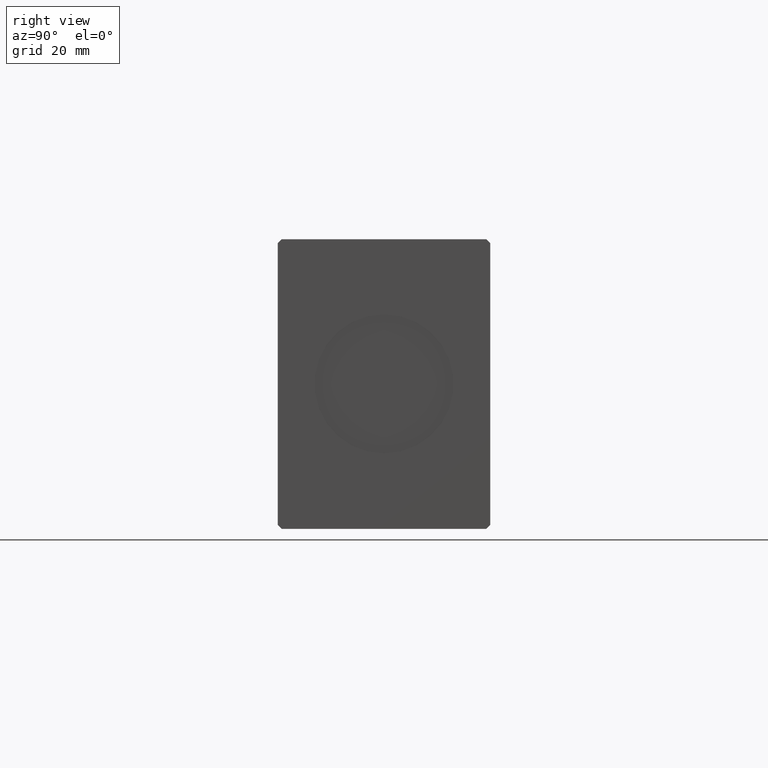
[diagram: clean part render]
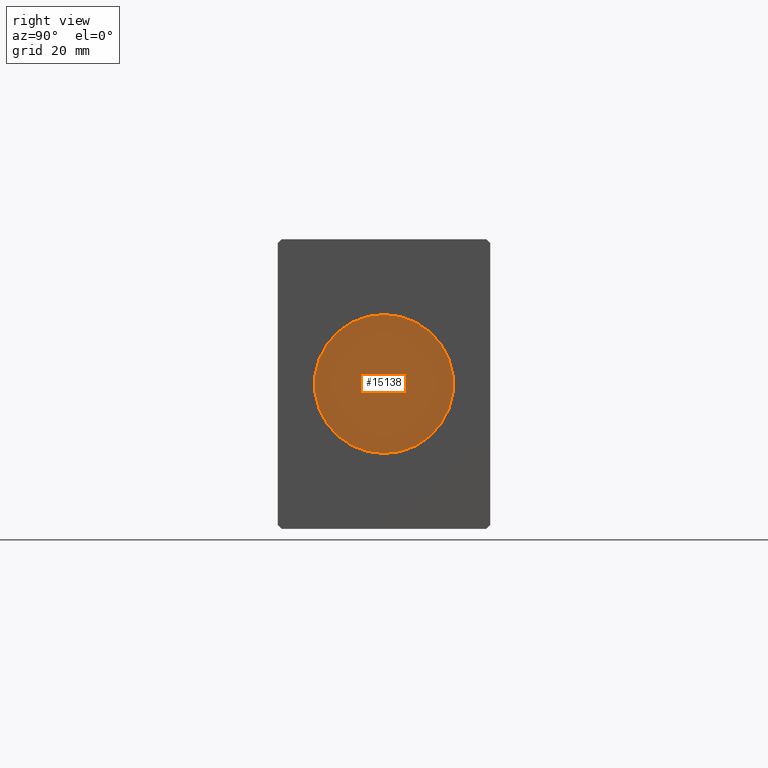
[diagram: same view with one face highlighted and labeled with its STEP entity id]
A machine part, right view. The second image highlights one B-rep face of the part: STEP entity #15138.
In plain terms, the highlighted planar face has unit normal (1, 0, 0).
Its self-contained STEP definition (entity closure, byte-faithful):
#555 = CARTESIAN_POINT ( 'NONE',  ( 164.8000000000000114, 2.204364238465235428E-15, 18.00000000000000000 ) ) ;
#2468 = EDGE_LOOP ( 'NONE', ( #24217, #15541 ) ) ;
#3814 = EDGE_CURVE ( 'NONE', #20819, #7463, #13003, .T. ) ;
#4744 = CARTESIAN_POINT ( 'NONE',  ( 164.8000000000000114, 0.000000000000000000, 0.000000000000000000 ) ) ;
#6166 = DIRECTION ( 'NONE',  ( 1.000000000000000000, 0.000000000000000000, 0.000000000000000000 ) ) ;
#6653 = CARTESIAN_POINT ( 'NONE',  ( 164.8000000000000114, 0.000000000000000000, -18.00000000000000000 ) ) ;
#7463 = VERTEX_POINT ( 'NONE', #555 ) ;
#8558 = DIRECTION ( 'NONE',  ( 0.000000000000000000, 0.000000000000000000, -1.000000000000000000 ) ) ;
#8799 = DIRECTION ( 'NONE',  ( 0.000000000000000000, 0.000000000000000000, -1.000000000000000000 ) ) ;
#10421 = AXIS2_PLACEMENT_3D ( 'NONE', #27434, #6166, #8799 ) ;
#13003 = CIRCLE ( 'NONE', #10421, 18.00000000000000000 ) ;
#13258 = EDGE_CURVE ( 'NONE', #7463, #20819, #34863, .T. ) ;
#15138 = ADVANCED_FACE ( 'NONE', ( #36712 ), #36316, .T. ) ;
#15541 = ORIENTED_EDGE ( 'NONE', *, *, #13258, .T. ) ;
#16049 = AXIS2_PLACEMENT_3D ( 'NONE', #21297, #38942, #8558 ) ;
#17377 = AXIS2_PLACEMENT_3D ( 'NONE', #4744, #22963, #39365 ) ;
#20819 = VERTEX_POINT ( 'NONE', #6653 ) ;
#21297 = CARTESIAN_POINT ( 'NONE',  ( 164.8000000000000114, 0.000000000000000000, 0.000000000000000000 ) ) ;
#22963 = DIRECTION ( 'NONE',  ( 1.000000000000000000, 0.000000000000000000, 0.000000000000000000 ) ) ;
#24217 = ORIENTED_EDGE ( 'NONE', *, *, #3814, .T. ) ;
#27434 = CARTESIAN_POINT ( 'NONE',  ( 164.8000000000000114, 0.000000000000000000, 0.000000000000000000 ) ) ;
#34863 = CIRCLE ( 'NONE', #17377, 18.00000000000000000 ) ;
#36316 = PLANE ( 'NONE',  #16049 ) ;
#36712 = FACE_OUTER_BOUND ( 'NONE', #2468, .T. ) ;
#38942 = DIRECTION ( 'NONE',  ( 1.000000000000000000, 0.000000000000000000, 0.000000000000000000 ) ) ;
#39365 = DIRECTION ( 'NONE',  ( 0.000000000000000000, 0.000000000000000000, -1.000000000000000000 ) ) ;